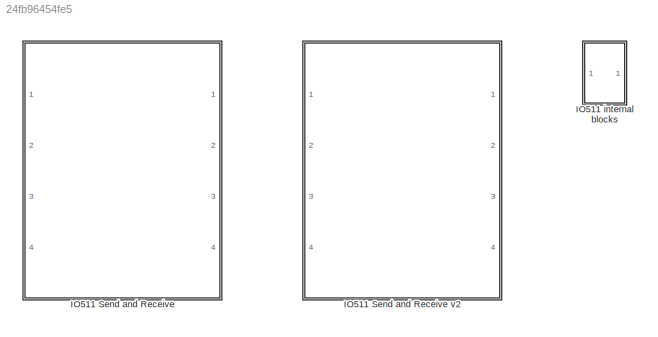
MODEL slx_24fb96454fe5
KIND library
CONFIG AbsTol = auto
CONFIG FixedStep = auto
CONFIG MaxStep = auto
CONFIG MinStep = auto
CONFIG RelTol = 1e-3
CONFIG SampleTimeConstraint = Unconstrained
CONFIG Solver = ode45
CONFIG SolverMode = Auto
CONFIG SolverName = ode45
CONFIG StartTime = 0.0
CONFIG StopTime = 10.0
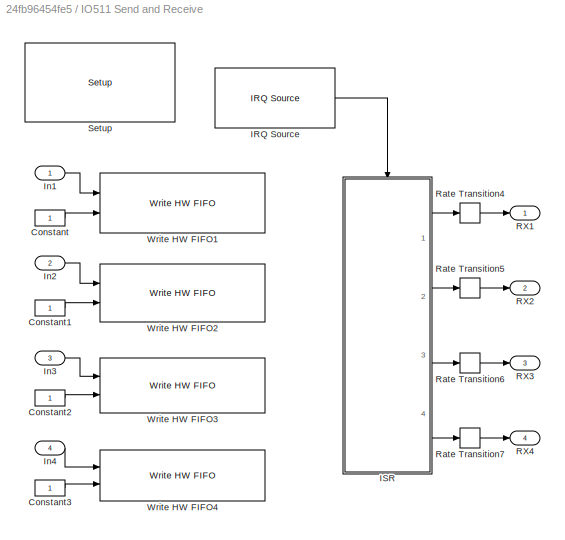
BLOCK [SubSystem] IO511 Send and Receive
  Ports = [4, 4]
  RequestExecContextInheritance = off
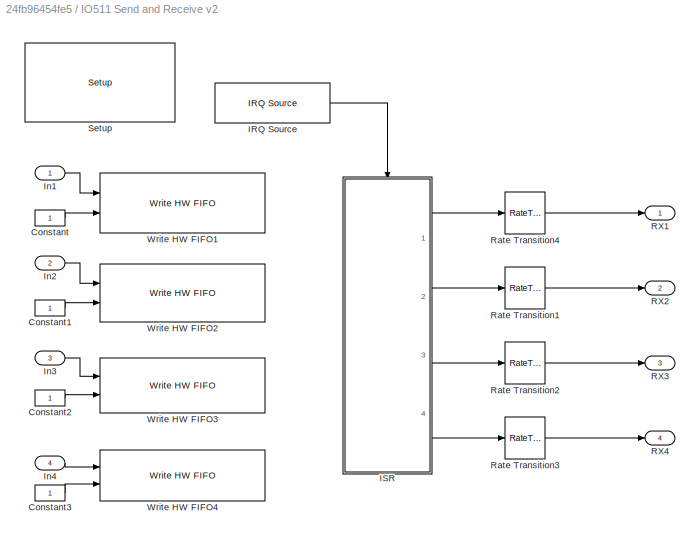
BLOCK [SubSystem] IO511 Send and Receive v2
  Ports = [4, 4]
  RequestExecContextInheritance = off
BLOCK [Constant] IO511 Send and Receive v2/Constant
  OutDataTypeStr = Inherit: Inherit via back propagation
BLOCK [Constant] IO511 Send and Receive v2/Constant1
  OutDataTypeStr = Inherit: Inherit via back propagation
BLOCK [Constant] IO511 Send and Receive v2/Constant2
  OutDataTypeStr = Inherit: Inherit via back propagation
BLOCK [Constant] IO511 Send and Receive v2/Constant3
  OutDataTypeStr = Inherit: Inherit via back propagation
BLOCK [Reference] IO511 Send and Receive v2/IRQ Source  REF=slrtlib/Asynchronous
Event/IRQ Source 
  Ports = [0, 1]
  SourceBlock = slrtlib/Asynchronous\nEvent/IRQ Source
  SourceType = xpcinterrupt
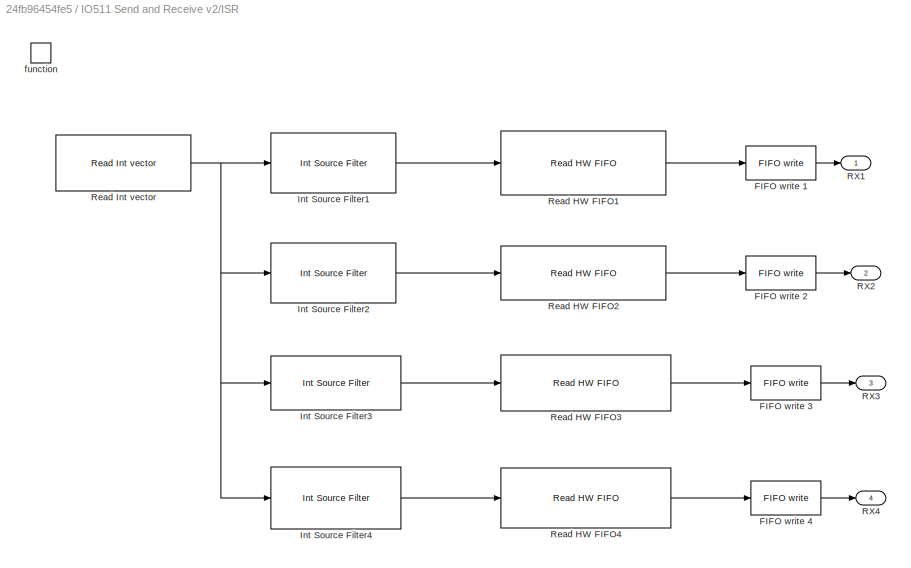
BLOCK [SubSystem] IO511 Send and Receive v2/ISR
  Ports = [0, 4, 0, 1]
  RequestExecContextInheritance = off
  TreatAsAtomicUnit = on
BLOCK [Reference] IO511 Send and Receive v2/ISR/FIFO write 1  REF=xpcseriallib/FIFO write 
  Ports = [1, 1]
  SourceBlock = xpcseriallib/FIFO write
  SourceType = Asynchronous FIFO Block: writer
BLOCK [Reference] IO511 Send and Receive v2/ISR/FIFO write 2  REF=xpcseriallib/FIFO write 
  Ports = [1, 1]
  SourceBlock = xpcseriallib/FIFO write
  SourceType = Asynchronous FIFO Block: writer
BLOCK [Reference] IO511 Send and Receive v2/ISR/FIFO write 3  REF=xpcseriallib/FIFO write 
  Ports = [1, 1]
  SourceBlock = xpcseriallib/FIFO write
  SourceType = Asynchronous FIFO Block: writer
BLOCK [Reference] IO511 Send and Receive v2/ISR/FIFO write 4  REF=xpcseriallib/FIFO write 
  Ports = [1, 1]
  SourceBlock = xpcseriallib/FIFO write
  SourceType = Asynchronous FIFO Block: writer
BLOCK [Reference] IO511 Send and Receive v2/ISR/Int Source Filter1  REF=speedgoatlib_IO511/IO511 internal blocks/Int Source Filter
  Ports = [1, 1]
  SourceBlock = speedgoatlib_IO511/IO511 internal blocks/Int Source Filter
  SourceType = intfilter_IO511
BLOCK [Reference] IO511 Send and Receive v2/ISR/Int Source Filter2  REF=speedgoatlib_IO511/IO511 internal blocks/Int Source Filter
  Ports = [1, 1]
  SourceBlock = speedgoatlib_IO511/IO511 internal blocks/Int Source Filter
  SourceType = intfilter_IO511
BLOCK [Reference] IO511 Send and Receive v2/ISR/Int Source Filter3  REF=speedgoatlib_IO511/IO511 internal blocks/Int Source Filter
  Ports = [1, 1]
  SourceBlock = speedgoatlib_IO511/IO511 internal blocks/Int Source Filter
  SourceType = intfilter_IO511
BLOCK [Reference] IO511 Send and Receive v2/ISR/Int Source Filter4  REF=speedgoatlib_IO511/IO511 internal blocks/Int Source Filter
  Ports = [1, 1]
  SourceBlock = speedgoatlib_IO511/IO511 internal blocks/Int Source Filter
  SourceType = intfilter_IO511
BLOCK [Outport] IO511 Send and Receive v2/ISR/RX1
  IconDisplay = Port number
BLOCK [Outport] IO511 Send and Receive v2/ISR/RX2
  IconDisplay = Port number
  Port = 2
BLOCK [Outport] IO511 Send and Receive v2/ISR/RX3
  IconDisplay = Port number
  Port = 3
BLOCK [Outport] IO511 Send and Receive v2/ISR/RX4
  IconDisplay = Port number
  Port = 4
BLOCK [Reference] IO511 Send and Receive v2/ISR/Read HW FIFO1  REF=speedgoatlib_IO511/IO511 internal blocks/Read HW FIFO
  Ports = [1, 1]
  SourceBlock = speedgoatlib_IO511/IO511 internal blocks/Read HW FIFO
  SourceType = rdhwfifo_IO511
BLOCK [Reference] IO511 Send and Receive v2/ISR/Read HW FIFO2  REF=speedgoatlib_IO511/IO511 internal blocks/Read HW FIFO
  Ports = [1, 1]
  SourceBlock = speedgoatlib_IO511/IO511 internal blocks/Read HW FIFO
  SourceType = rdhwfifo_IO511
BLOCK [Reference] IO511 Send and Receive v2/ISR/Read HW FIFO3  REF=speedgoatlib_IO511/IO511 internal blocks/Read HW FIFO
  Ports = [1, 1]
  SourceBlock = speedgoatlib_IO511/IO511 internal blocks/Read HW FIFO
  SourceType = rdhwfifo_IO511
BLOCK [Reference] IO511 Send and Receive v2/ISR/Read HW FIFO4  REF=speedgoatlib_IO511/IO511 internal blocks/Read HW FIFO
  Ports = [1, 1]
  SourceBlock = speedgoatlib_IO511/IO511 internal blocks/Read HW FIFO
  SourceType = rdhwfifo_IO511
BLOCK [Reference] IO511 Send and Receive v2/ISR/Read Int vector  REF=speedgoatlib_IO511/IO511 internal blocks/Read Int vector
  Ports = [0, 1]
  SourceBlock = speedgoatlib_IO511/IO511 internal blocks/Read Int vector
  SourceType = rdintvector_IO511
BLOCK [TriggerPort] IO511 Send and Receive v2/ISR/function
  Ports = []
  StatesWhenEnabling = held
  TriggerType = function-call
BLOCK [Inport] IO511 Send and Receive v2/In1
  IconDisplay = Port number
BLOCK [Inport] IO511 Send and Receive v2/In2
  IconDisplay = Port number
  Port = 2
BLOCK [Inport] IO511 Send and Receive v2/In3
  IconDisplay = Port number
  Port = 3
BLOCK [Inport] IO511 Send and Receive v2/In4
  IconDisplay = Port number
  Port = 4
BLOCK [Outport] IO511 Send and Receive v2/RX1
  IconDisplay = Port number
BLOCK [Outport] IO511 Send and Receive v2/RX2
  IconDisplay = Port number
  Port = 2
BLOCK [Outport] IO511 Send and Receive v2/RX3
  IconDisplay = Port number
  Port = 3
BLOCK [Outport] IO511 Send and Receive v2/RX4
  IconDisplay = Port number
  Port = 4
BLOCK [RateTransition] IO511 Send and Receive v2/Rate Transition1
  Deterministic = off
  Integrity = off
BLOCK [RateTransition] IO511 Send and Receive v2/Rate Transition2
  Deterministic = off
  Integrity = off
BLOCK [RateTransition] IO511 Send and Receive v2/Rate Transition3
  Deterministic = off
  Integrity = off
BLOCK [RateTransition] IO511 Send and Receive v2/Rate Transition4
  Deterministic = off
  Integrity = off
BLOCK [Reference] IO511 Send and Receive v2/Setup  REF=speedgoatlib_IO511/IO511 internal blocks/Setup
  Ports = []
  SourceBlock = speedgoatlib_IO511/IO511 internal blocks/Setup
  SourceType = setup_IO511
BLOCK [Reference] IO511 Send and Receive v2/Write HW FIFO1  REF=speedgoatlib_IO511/IO511 internal blocks/Write HW FIFO
  Ports = [2]
  SourceBlock = speedgoatlib_IO511/IO511 internal blocks/Write HW FIFO
  SourceType = wrhwfifo_IO511
BLOCK [Reference] IO511 Send and Receive v2/Write HW FIFO2  REF=speedgoatlib_IO511/IO511 internal blocks/Write HW FIFO
  Ports = [2]
  SourceBlock = speedgoatlib_IO511/IO511 internal blocks/Write HW FIFO
  SourceType = wrhwfifo_IO511
BLOCK [Reference] IO511 Send and Receive v2/Write HW FIFO3  REF=speedgoatlib_IO511/IO511 internal blocks/Write HW FIFO
  Ports = [2]
  SourceBlock = speedgoatlib_IO511/IO511 internal blocks/Write HW FIFO
  SourceType = wrhwfifo_IO511
BLOCK [Reference] IO511 Send and Receive v2/Write HW FIFO4  REF=speedgoatlib_IO511/IO511 internal blocks/Write HW FIFO
  Ports = [2]
  SourceBlock = speedgoatlib_IO511/IO511 internal blocks/Write HW FIFO
  SourceType = wrhwfifo_IO511
BLOCK [Constant] IO511 Send and Receive/Constant
  OutDataTypeStr = Inherit: Inherit via back propagation
BLOCK [Constant] IO511 Send and Receive/Constant1
  OutDataTypeStr = Inherit: Inherit via back propagation
BLOCK [Constant] IO511 Send and Receive/Constant2
  OutDataTypeStr = Inherit: Inherit via back propagation
BLOCK [Constant] IO511 Send and Receive/Constant3
  OutDataTypeStr = Inherit: Inherit via back propagation
BLOCK [Reference] IO511 Send and Receive/IRQ Source  REF=xpclib/Asynchronous
Event/IRQ Source
  Ports = [0, 1]
  SourceBlock = xpclib/Asynchronous\nEvent/IRQ Source
  SourceType = xpcinterrupt
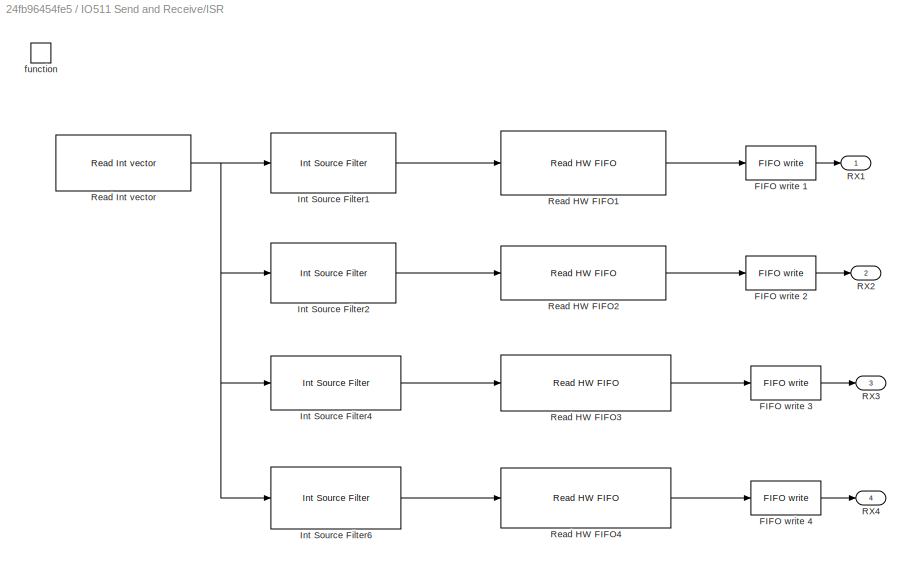
BLOCK [SubSystem] IO511 Send and Receive/ISR
  Ports = [0, 4, 0, 1]
  RequestExecContextInheritance = off
  TreatAsAtomicUnit = on
BLOCK [Reference] IO511 Send and Receive/ISR/FIFO write 1  REF=xpcseriallib/FIFO write 
  Ports = [1, 1]
  SourceBlock = xpcseriallib/FIFO write
  SourceType = Asynchronous FIFO Block: writer
BLOCK [Reference] IO511 Send and Receive/ISR/FIFO write 2  REF=xpcseriallib/FIFO write 
  Ports = [1, 1]
  SourceBlock = xpcseriallib/FIFO write
  SourceType = Asynchronous FIFO Block: writer
BLOCK [Reference] IO511 Send and Receive/ISR/FIFO write 3  REF=xpcseriallib/FIFO write 
  Ports = [1, 1]
  SourceBlock = xpcseriallib/FIFO write
  SourceType = Asynchronous FIFO Block: writer
BLOCK [Reference] IO511 Send and Receive/ISR/FIFO write 4  REF=xpcseriallib/FIFO write 
  Ports = [1, 1]
  SourceBlock = xpcseriallib/FIFO write
  SourceType = Asynchronous FIFO Block: writer
BLOCK [Reference] IO511 Send and Receive/ISR/Int Source Filter1  REF=speedgoatlib_IO511/IO511 internal blocks/Int Source Filter
  Ports = [1, 1]
  SourceBlock = speedgoatlib_IO511/IO511 internal blocks/Int Source Filter
  SourceType = intfilter_IO511
BLOCK [Reference] IO511 Send and Receive/ISR/Int Source Filter2  REF=speedgoatlib_IO511/IO511 internal blocks/Int Source Filter
  Ports = [1, 1]
  SourceBlock = speedgoatlib_IO511/IO511 internal blocks/Int Source Filter
  SourceType = intfilter_IO511
BLOCK [Reference] IO511 Send and Receive/ISR/Int Source Filter4  REF=speedgoatlib_IO511/IO511 internal blocks/Int Source Filter
  Ports = [1, 1]
  SourceBlock = speedgoatlib_IO511/IO511 internal blocks/Int Source Filter
  SourceType = intfilter_IO511
BLOCK [Reference] IO511 Send and Receive/ISR/Int Source Filter6  REF=speedgoatlib_IO511/IO511 internal blocks/Int Source Filter
  Ports = [1, 1]
  SourceBlock = speedgoatlib_IO511/IO511 internal blocks/Int Source Filter
  SourceType = intfilter_IO511
BLOCK [Outport] IO511 Send and Receive/ISR/RX1
  IconDisplay = Port number
BLOCK [Outport] IO511 Send and Receive/ISR/RX2
  IconDisplay = Port number
  Port = 2
BLOCK [Outport] IO511 Send and Receive/ISR/RX3
  IconDisplay = Port number
  Port = 3
BLOCK [Outport] IO511 Send and Receive/ISR/RX4
  IconDisplay = Port number
  Port = 4
BLOCK [Reference] IO511 Send and Receive/ISR/Read HW FIFO1  REF=speedgoatlib_IO511/IO511 internal blocks/Read HW FIFO
  Ports = [1, 1]
  SourceBlock = speedgoatlib_IO511/IO511 internal blocks/Read HW FIFO
  SourceType = rdhwfifo_IO511
BLOCK [Reference] IO511 Send and Receive/ISR/Read HW FIFO2  REF=speedgoatlib_IO511/IO511 internal blocks/Read HW FIFO
  Ports = [1, 1]
  SourceBlock = speedgoatlib_IO511/IO511 internal blocks/Read HW FIFO
  SourceType = rdhwfifo_IO511
BLOCK [Reference] IO511 Send and Receive/ISR/Read HW FIFO3  REF=speedgoatlib_IO511/IO511 internal blocks/Read HW FIFO
  Ports = [1, 1]
  SourceBlock = speedgoatlib_IO511/IO511 internal blocks/Read HW FIFO
  SourceType = rdhwfifo_IO511
BLOCK [Reference] IO511 Send and Receive/ISR/Read HW FIFO4  REF=speedgoatlib_IO511/IO511 internal blocks/Read HW FIFO
  Ports = [1, 1]
  SourceBlock = speedgoatlib_IO511/IO511 internal blocks/Read HW FIFO
  SourceType = rdhwfifo_IO511
BLOCK [Reference] IO511 Send and Receive/ISR/Read Int vector  REF=speedgoatlib_IO511/IO511 internal blocks/Read Int vector
  Ports = [0, 1]
  SourceBlock = speedgoatlib_IO511/IO511 internal blocks/Read Int vector
  SourceType = rdintvector_IO511
BLOCK [TriggerPort] IO511 Send and Receive/ISR/function
  Ports = []
  StatesWhenEnabling = held
  TriggerType = function-call
BLOCK [Inport] IO511 Send and Receive/In1
  IconDisplay = Port number
BLOCK [Inport] IO511 Send and Receive/In2
  IconDisplay = Port number
  Port = 2
BLOCK [Inport] IO511 Send and Receive/In3
  IconDisplay = Port number
  Port = 3
BLOCK [Inport] IO511 Send and Receive/In4
  IconDisplay = Port number
  Port = 4
BLOCK [Outport] IO511 Send and Receive/RX1
  IconDisplay = Port number
BLOCK [Outport] IO511 Send and Receive/RX2
  IconDisplay = Port number
  Port = 2
BLOCK [Outport] IO511 Send and Receive/RX3
  IconDisplay = Port number
  Port = 3
BLOCK [Outport] IO511 Send and Receive/RX4
  IconDisplay = Port number
  Port = 4
BLOCK [RateTransition] IO511 Send and Receive/Rate Transition4
  Deterministic = off
  Integrity = off
BLOCK [RateTransition] IO511 Send and Receive/Rate Transition5
  Deterministic = off
  Integrity = off
BLOCK [RateTransition] IO511 Send and Receive/Rate Transition6
  Deterministic = off
  Integrity = off
BLOCK [RateTransition] IO511 Send and Receive/Rate Transition7
  Deterministic = off
  Integrity = off
BLOCK [Reference] IO511 Send and Receive/Setup  REF=speedgoatlib_IO511/IO511 internal blocks/Setup
  Ports = []
  SourceBlock = speedgoatlib_IO511/IO511 internal blocks/Setup
  SourceType = setup_IO511
BLOCK [Reference] IO511 Send and Receive/Write HW FIFO1  REF=speedgoatlib_IO511/IO511 internal blocks/Write HW FIFO
  Ports = [2]
  SourceBlock = speedgoatlib_IO511/IO511 internal blocks/Write HW FIFO
  SourceType = wrhwfifo_IO511
BLOCK [Reference] IO511 Send and Receive/Write HW FIFO2  REF=speedgoatlib_IO511/IO511 internal blocks/Write HW FIFO
  Ports = [2]
  SourceBlock = speedgoatlib_IO511/IO511 internal blocks/Write HW FIFO
  SourceType = wrhwfifo_IO511
BLOCK [Reference] IO511 Send and Receive/Write HW FIFO3  REF=speedgoatlib_IO511/IO511 internal blocks/Write HW FIFO
  Ports = [2]
  SourceBlock = speedgoatlib_IO511/IO511 internal blocks/Write HW FIFO
  SourceType = wrhwfifo_IO511
BLOCK [Reference] IO511 Send and Receive/Write HW FIFO4  REF=speedgoatlib_IO511/IO511 internal blocks/Write HW FIFO
  Ports = [2]
  SourceBlock = speedgoatlib_IO511/IO511 internal blocks/Write HW FIFO
  SourceType = wrhwfifo_IO511
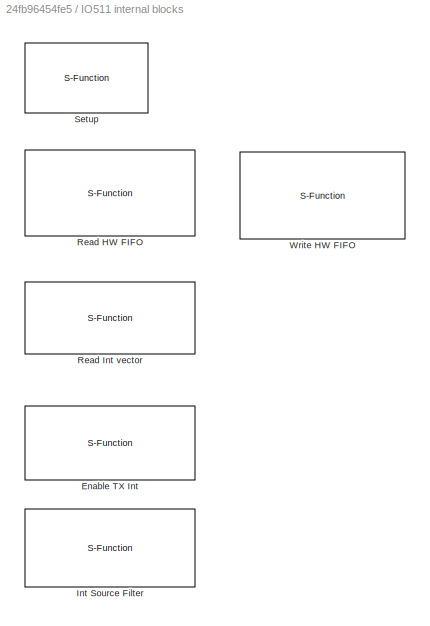
BLOCK [SubSystem] IO511 internal blocks
  Ports = []
  RequestExecContextInheritance = off
BLOCK [S-Function] IO511 internal blocks/Enable TX Int
  EnableBusSupport = off
  FunctionName = sg_IO511_txintenable_s
  InitFcn = sg_IO511_txintenable_m(1);
  Parameters = pciSlot, ts, chan
  Ports = [1]
BLOCK [S-Function] IO511 internal blocks/Int Source Filter
  EnableBusSupport = off
  FunctionName = sg_IO511_intfilter_s
  InitFcn = sg_IO511_intfilter_m(1);
  Parameters = pciSlot,ts,dir,chan,width
  Ports = [1, 1]
BLOCK [S-Function] IO511 internal blocks/Read HW FIFO
  EnableBusSupport = off
  FunctionName = sg_IO511_rdhwfifo_s
  InitFcn = sg_IO511_rdhwfifo_m(1);
  Parameters = pciSlot, ts, chan, fifoSize
  Ports = [1, 1]
BLOCK [S-Function] IO511 internal blocks/Read Int vector
  EnableBusSupport = off
  FunctionName = sg_IO511_rdintvector_s
  InitFcn = sg_IO511_rdintvector_m(1);
  Parameters = pciSlot,ts
  Ports = [0, 1]
BLOCK [S-Function] IO511 internal blocks/Setup
  EnableBusSupport = off
  FunctionName = sg_IO511_setup_s
  InitFcn = sg_IO511_setup_m(1);
  Parameters = pciSlot, chan, mode, freq, rxAlmost
  Ports = []
BLOCK [S-Function] IO511 internal blocks/Write HW FIFO
  EnableBusSupport = off
  FunctionName = sg_IO511_wrhwfifo_s
  InitFcn = sg_IO511_wrhwfifo_m(1);
  Parameters = pciSlot, ts, chan, max
  Ports = [2]
LINE IO511 Send and Receive/Constant1:1 -> IO511 Send and Receive/Write HW FIFO2:2
LINE IO511 Send and Receive/Constant2:1 -> IO511 Send and Receive/Write HW FIFO3:2
LINE IO511 Send and Receive/Constant3:1 -> IO511 Send and Receive/Write HW FIFO4:2
LINE IO511 Send and Receive/Constant:1 -> IO511 Send and Receive/Write HW FIFO1:2
LINE IO511 Send and Receive/IRQ Source:1 -> IO511 Send and Receive/ISR:trigger
LINE IO511 Send and Receive/ISR/FIFO write 1:1 -> IO511 Send and Receive/ISR/RX1:1
LINE IO511 Send and Receive/ISR/FIFO write 2:1 -> IO511 Send and Receive/ISR/RX2:1
LINE IO511 Send and Receive/ISR/FIFO write 3:1 -> IO511 Send and Receive/ISR/RX3:1
LINE IO511 Send and Receive/ISR/FIFO write 4:1 -> IO511 Send and Receive/ISR/RX4:1
LINE IO511 Send and Receive/ISR/Int Source Filter1:1 -> IO511 Send and Receive/ISR/Read HW FIFO1:1
LINE IO511 Send and Receive/ISR/Int Source Filter2:1 -> IO511 Send and Receive/ISR/Read HW FIFO2:1
LINE IO511 Send and Receive/ISR/Int Source Filter4:1 -> IO511 Send and Receive/ISR/Read HW FIFO3:1
LINE IO511 Send and Receive/ISR/Int Source Filter6:1 -> IO511 Send and Receive/ISR/Read HW FIFO4:1
LINE IO511 Send and Receive/ISR/Read HW FIFO1:1 -> IO511 Send and Receive/ISR/FIFO write 1:1
LINE IO511 Send and Receive/ISR/Read HW FIFO2:1 -> IO511 Send and Receive/ISR/FIFO write 2:1
LINE IO511 Send and Receive/ISR/Read HW FIFO3:1 -> IO511 Send and Receive/ISR/FIFO write 3:1
LINE IO511 Send and Receive/ISR/Read HW FIFO4:1 -> IO511 Send and Receive/ISR/FIFO write 4:1
NET IO511 Send and Receive/ISR/Read Int vector:1 -> IO511 Send and Receive/ISR/Int Source Filter1:1, IO511 Send and Receive/ISR/Int Source Filter2:1, IO511 Send and Receive/ISR/Int Source Filter4:1, IO511 Send and Receive/ISR/Int Source Filter6:1
LINE IO511 Send and Receive/ISR:1 -> IO511 Send and Receive/Rate Transition4:1
LINE IO511 Send and Receive/ISR:2 -> IO511 Send and Receive/Rate Transition5:1
LINE IO511 Send and Receive/ISR:3 -> IO511 Send and Receive/Rate Transition6:1
LINE IO511 Send and Receive/ISR:4 -> IO511 Send and Receive/Rate Transition7:1
LINE IO511 Send and Receive/In1:1 -> IO511 Send and Receive/Write HW FIFO1:1
LINE IO511 Send and Receive/In2:1 -> IO511 Send and Receive/Write HW FIFO2:1
LINE IO511 Send and Receive/In3:1 -> IO511 Send and Receive/Write HW FIFO3:1
LINE IO511 Send and Receive/In4:1 -> IO511 Send and Receive/Write HW FIFO4:1
LINE IO511 Send and Receive/Rate Transition4:1 -> IO511 Send and Receive/RX1:1
LINE IO511 Send and Receive/Rate Transition5:1 -> IO511 Send and Receive/RX2:1
LINE IO511 Send and Receive/Rate Transition6:1 -> IO511 Send and Receive/RX3:1
LINE IO511 Send and Receive/Rate Transition7:1 -> IO511 Send and Receive/RX4:1
note: NET lines group one-source signal fan-out (src -> all destinations, sorted); 1:1 wires keep LINE
